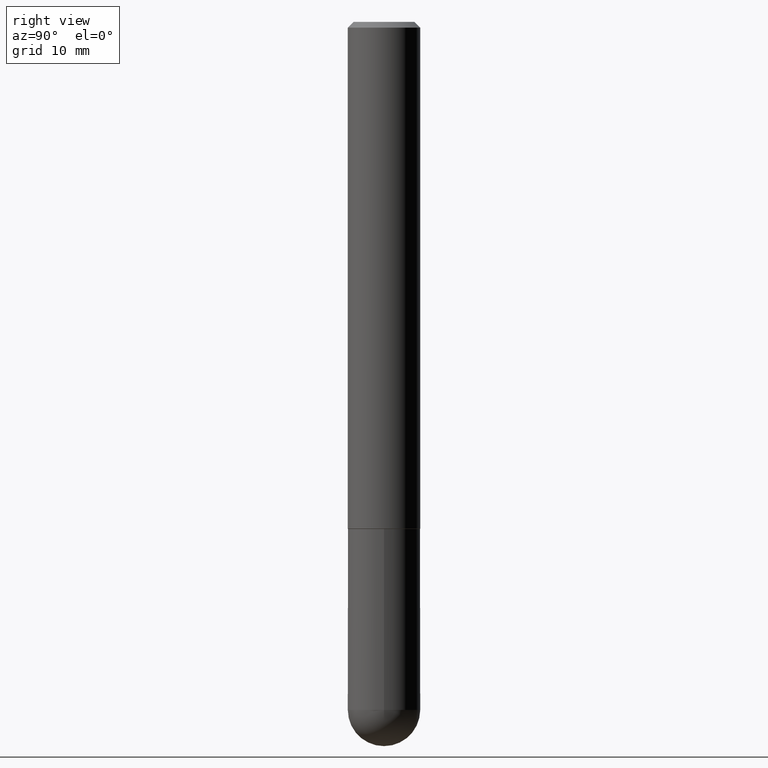
[diagram: clean part render]
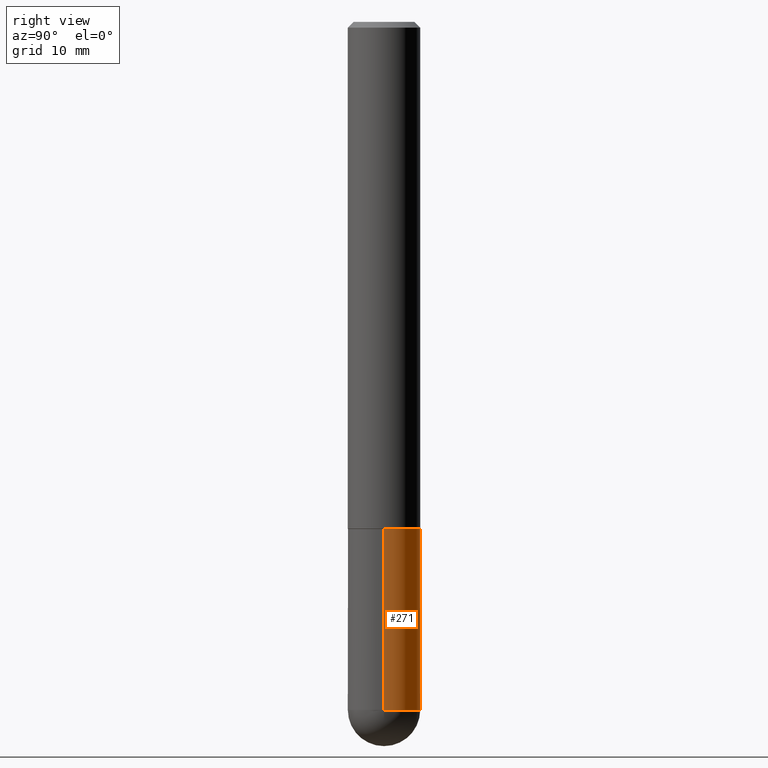
[diagram: same view with one face highlighted and labeled with its STEP entity id]
A machine part, right view. The second image highlights one B-rep face of the part: STEP entity #271.
In plain terms, the highlighted cylindrical surface (edge-blend (fillet) strip) has radius 3.175 mm, axis along (-0, 0, 1).
Its self-contained STEP definition (entity closure, byte-faithful):
#6 = LINE ( 'NONE', #159, #23 ) ;
#17 = AXIS2_PLACEMENT_3D ( 'NONE', #316, #33, #31 ) ;
#18 = CARTESIAN_POINT ( 'NONE',  ( -0.1250000000000000000, 8.881784197001252323E-16, -6.148668862818632227E-30 ) ) ;
#21 = EDGE_CURVE ( 'NONE', #353, #292, #305, .T. ) ;
#23 = VECTOR ( 'NONE', #323, 39.37007874015748143 ) ;
#31 = DIRECTION ( 'NONE',  ( 1.000000000000000000, -6.982962677686266711E-15, 4.876176775795935793E-29 ) ) ;
#33 = DIRECTION ( 'NONE',  ( -2.445468806185136597E-29, 3.491481338843145583E-15, 1.000000000000000000 ) ) ;
#50 = CIRCLE ( 'NONE', #383, 0.1250000000000000000 ) ;
#52 = CARTESIAN_POINT ( 'NONE',  ( 0.1250000000000000000, -8.074050596074771916E-15, -2.375000000000000000 ) ) ;
#64 = CYLINDRICAL_SURFACE ( 'NONE', #17, 0.1250000000000000000 ) ;
#71 = ORIENTED_EDGE ( 'NONE', *, *, #375, .F. ) ;
#76 = ORIENTED_EDGE ( 'NONE', *, *, #21, .T. ) ;
#84 = AXIS2_PLACEMENT_3D ( 'NONE', #349, #97, #252 ) ;
#97 = DIRECTION ( 'NONE',  ( -2.445468806185136597E-29, 3.491481338843145583E-15, 1.000000000000000000 ) ) ;
#100 = ORIENTED_EDGE ( 'NONE', *, *, #265, .T. ) ;
#105 = CARTESIAN_POINT ( 'NONE',  ( 4.279570410823989044E-29, -6.110092342975505460E-15, -1.750000000000000222 ) ) ;
#106 = DIRECTION ( 'NONE',  ( -2.445468806185136877E-29, 3.491481338843145188E-15, 1.000000000000000000 ) ) ;
#117 = CIRCLE ( 'NONE', #347, 0.1250000000000000000 ) ;
#132 = VERTEX_POINT ( 'NONE', #214 ) ;
#151 = CARTESIAN_POINT ( 'NONE',  ( 5.807988414689700538E-29, -8.292268179752471696E-15, -2.375000000000000000 ) ) ;
#159 = CARTESIAN_POINT ( 'NONE',  ( 0.1250000000000000000, -8.728703347107833388E-16, 6.095220969744919741E-30 ) ) ;
#178 = CIRCLE ( 'NONE', #84, 0.1250000000000000000 ) ;
#198 = VERTEX_POINT ( 'NONE', #52 ) ;
#214 = CARTESIAN_POINT ( 'NONE',  ( 0.1250000000000000000, -6.982962677686288010E-15, -1.750000000000000222 ) ) ;
#219 = DIRECTION ( 'NONE',  ( -2.445468806185136597E-29, 3.491481338843145583E-15, 1.000000000000000000 ) ) ;
#227 = VECTOR ( 'NONE', #106, 39.37007874015748143 ) ;
#228 = CARTESIAN_POINT ( 'NONE',  ( 8.728703347108403340E-16, 0.1249999999999915623, -2.375000000000000888 ) ) ;
#229 = ORIENTED_EDGE ( 'NONE', *, *, #382, .F. ) ;
#230 = DIRECTION ( 'NONE',  ( -2.445468806185136597E-29, 3.491481338843145583E-15, 1.000000000000000000 ) ) ;
#232 = ORIENTED_EDGE ( 'NONE', *, *, #324, .T. ) ;
#252 = DIRECTION ( 'NONE',  ( 1.000000000000000000, -6.982962677686270655E-15, 0.000000000000000000 ) ) ;
#258 = CARTESIAN_POINT ( 'NONE',  ( -0.1250000000000000000, -6.313001841663863345E-15, -1.750000000000000222 ) ) ;
#259 = EDGE_LOOP ( 'NONE', ( #100, #76, #71, #229, #232 ) ) ;
#263 = DIRECTION ( 'NONE',  ( 1.000000000000000000, -6.982962677686262766E-15, 0.000000000000000000 ) ) ;
#265 = EDGE_CURVE ( 'NONE', #391, #353, #178, .T. ) ;
#271 = ADVANCED_FACE ( 'NONE', ( #289 ), #64, .T. ) ;
#287 = DIRECTION ( 'NONE',  ( 1.000000000000000000, -6.982962677686270655E-15, 0.000000000000000000 ) ) ;
#289 = FACE_OUTER_BOUND ( 'NONE', #259, .T. ) ;
#292 = VERTEX_POINT ( 'NONE', #258 ) ;
#305 = LINE ( 'NONE', #18, #227 ) ;
#316 = CARTESIAN_POINT ( 'NONE',  ( 0.000000000000000000, 0.000000000000000000, 0.000000000000000000 ) ) ;
#323 = DIRECTION ( 'NONE',  ( -2.445468806185136877E-29, 3.491481338843145188E-15, 1.000000000000000000 ) ) ;
#324 = EDGE_CURVE ( 'NONE', #198, #391, #117, .T. ) ;
#345 = CARTESIAN_POINT ( 'NONE',  ( -0.1250000000000000000, -6.313001841663864134E-15, -2.375000000000000000 ) ) ;
#347 = AXIS2_PLACEMENT_3D ( 'NONE', #151, #219, #287 ) ;
#349 = CARTESIAN_POINT ( 'NONE',  ( 5.807988414689700538E-29, -8.292268179752471696E-15, -2.375000000000000000 ) ) ;
#353 = VERTEX_POINT ( 'NONE', #345 ) ;
#375 = EDGE_CURVE ( 'NONE', #132, #292, #50, .T. ) ;
#382 = EDGE_CURVE ( 'NONE', #198, #132, #6, .T. ) ;
#383 = AXIS2_PLACEMENT_3D ( 'NONE', #105, #230, #263 ) ;
#391 = VERTEX_POINT ( 'NONE', #228 ) ;